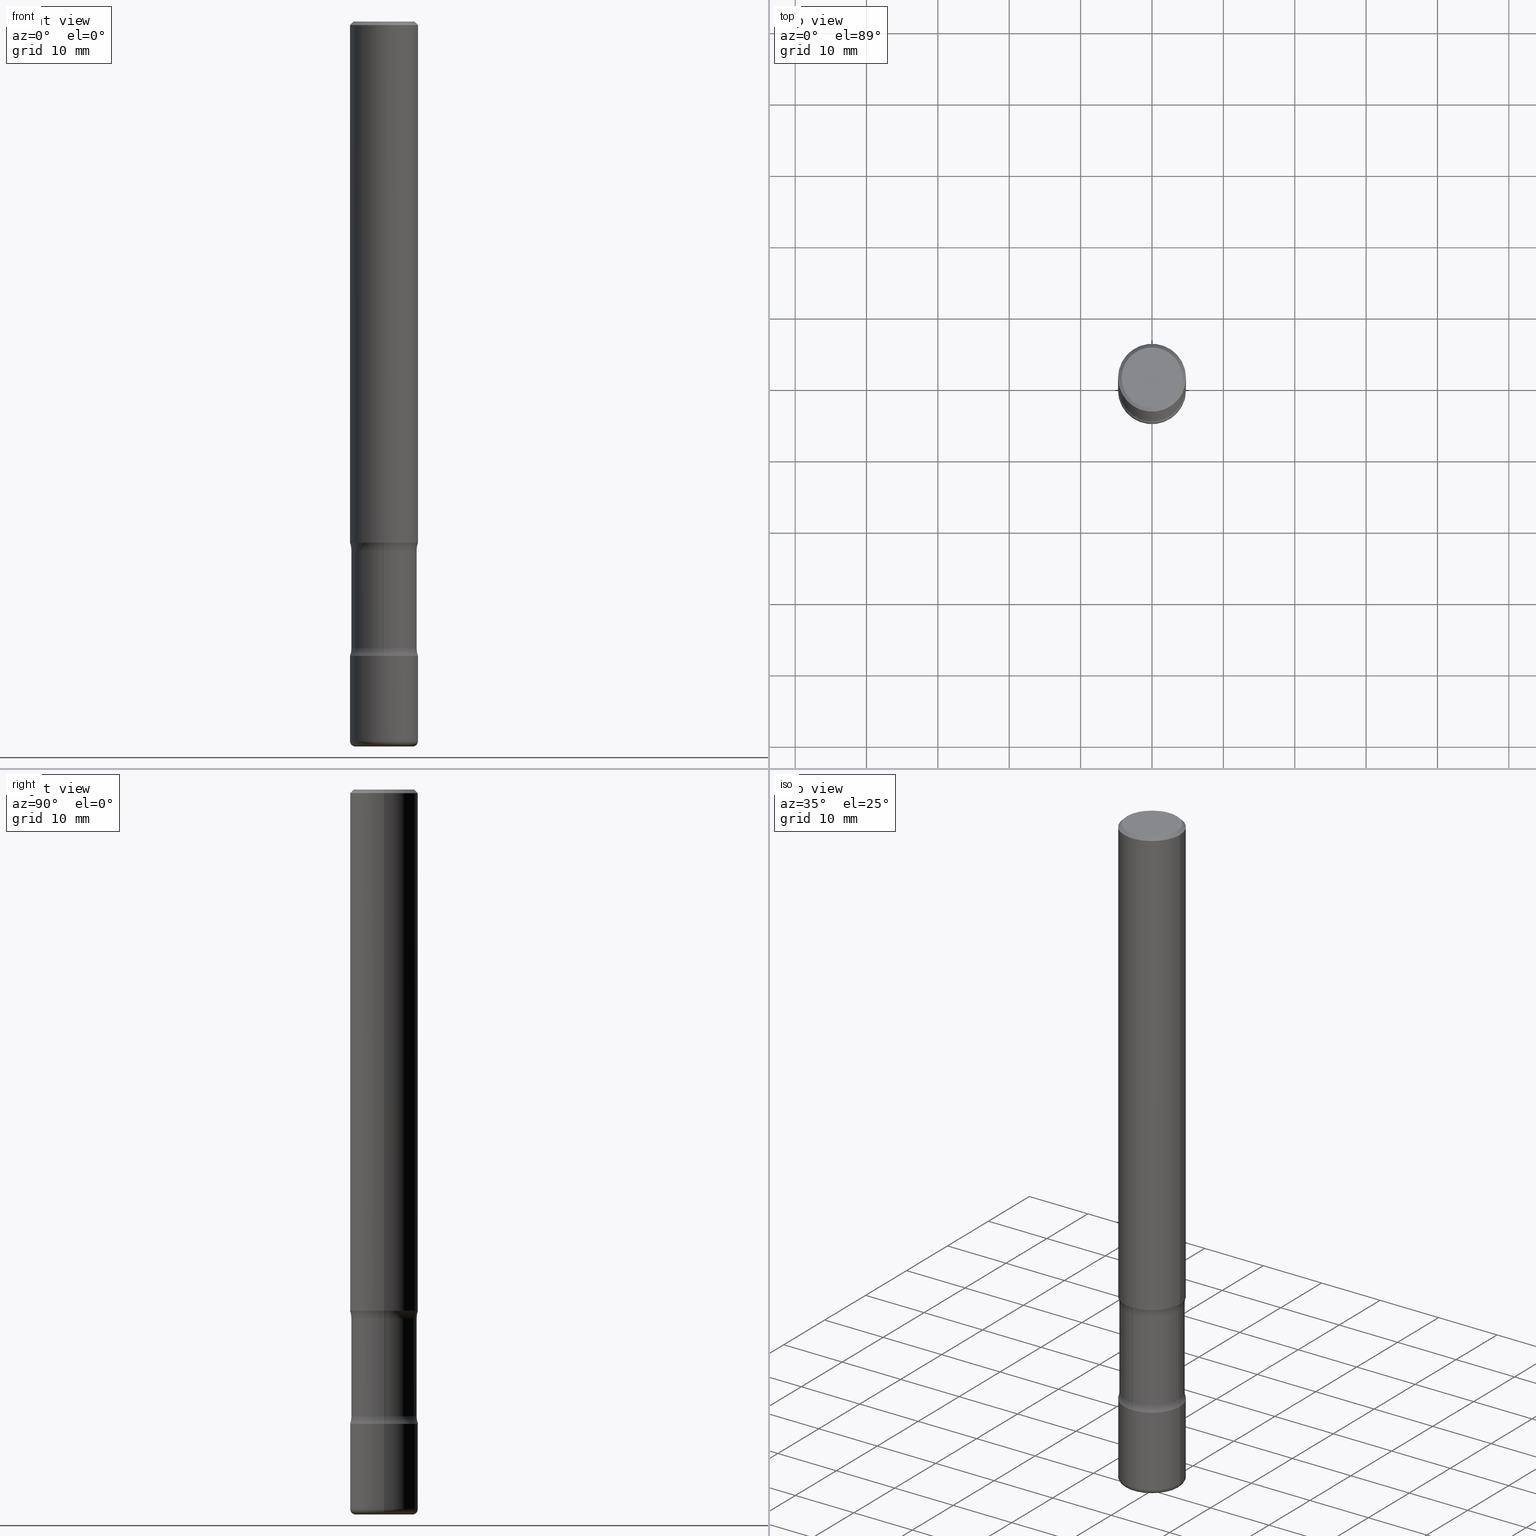
[diagram: canonical four-view strip — front | top / right | iso, engineering-drawing reading convention]
A machine part, canonical four-view strip (front | top / right | iso — engineering-drawing reading convention). The complete STEP part file that produces these views, byte-faithful:
ISO-10303-21;
HEADER;
FILE_DESCRIPTION (( 'STEP AP203' ),
    '1' );
FILE_NAME ('32762.STEP',
    '2023-03-11T07:00:31',
    ( '' ),
    ( '' ),
    'SwSTEP 2.0',
    'SolidWorks 2022',
    '' );
FILE_SCHEMA (( 'CONFIG_CONTROL_DESIGN' ));
ENDSEC;

DATA;
#1 = PERSON_AND_ORGANIZATION ( #17, #24 ) ;
#2 = DIRECTION ( 'NONE',  ( 1.000000000000000000, -6.982962677686265133E-15, 0.000000000000000000 ) ) ;
#3 = DIRECTION ( 'NONE',  ( -6.982962677686265922E-15, -1.000000000000000000, 3.494149645189090604E-15 ) ) ;
#4 = ADVANCED_BREP_SHAPE_REPRESENTATION ( '32762', ( #213, #483, #194, #472, #778 ), #739 ) ;
#5 = ORIENTED_EDGE ( 'NONE', *, *, #271, .F. ) ;
#6 = AXIS2_PLACEMENT_3D ( 'NONE', #566, #755, #639 ) ;
#7 = CIRCLE ( 'NONE', #630, 0.1249999999999999584 ) ;
#8 = CARTESIAN_POINT ( 'NONE',  ( 4.890937612370283668E-31, -6.982962677686305168E-17, -0.02000000000000004205 ) ) ;
#9 = DIRECTION ( 'NONE',  ( -2.445468806185136597E-29, 3.491481338843145583E-15, 1.000000000000000000 ) ) ;
#10 = EDGE_LOOP ( 'NONE', ( #644, #299 ) ) ;
#11 = EDGE_CURVE ( 'NONE', #582, #318, #142, .T. ) ;
#12 = CYLINDRICAL_SURFACE ( 'NONE', #425, 0.1799999999999999378 ) ;
#13 = CARTESIAN_POINT ( 'NONE',  ( 8.454928852112242500E-29, -1.207117036643762880E-14, -3.457353194726919821 ) ) ;
#14 = VERTEX_POINT ( 'NONE', #796 ) ;
#15 = ADVANCED_FACE ( 'NONE', ( #416 ), #352, .T. ) ;
#16 = DIRECTION ( 'NONE',  ( 2.438088387897960049E-29, -3.491481338843145188E-15, -1.000000000000000000 ) ) ;
#17 = PERSON ( 'UNSPECIFIED', 'UNSPECIFIED', 'UNSPECIFIED', ('UNSPECIFIED'), ('UNSPECIFIED'), ('UNSPECIFIED') ) ;
#18 = DIRECTION ( 'NONE',  ( 2.443605537822500206E-29, -3.494149645189090210E-15, -1.000000000000000000 ) ) ;
#19 = DIRECTION ( 'NONE',  ( 1.000000000000000000, -6.860497997771530774E-15, 4.840766202295886051E-29 ) ) ;
#20 = CIRCLE ( 'NONE', #206, 0.1875000000000000278 ) ;
#21 = EDGE_CURVE ( 'NONE', #783, #717, #381, .T. ) ;
#22 = AXIS2_PLACEMENT_3D ( 'NONE', #166, #666, #168 ) ;
#23 = DIRECTION ( 'NONE',  ( 6.982962677686265922E-15, 1.000000000000000000, -3.494149645189090604E-15 ) ) ;
#24 = ORGANIZATION ( 'UNSPECIFIED', 'UNSPECIFIED', '' ) ;
#25 = ORIENTED_EDGE ( 'NONE', *, *, #149, .F. ) ;
#26 = CYLINDRICAL_SURFACE ( 'NONE', #162, 0.1799999999999999378 ) ;
#27 = DIRECTION ( 'NONE',  ( 6.982962677686265922E-15, 1.000000000000000000, -2.913971193241880372E-15 ) ) ;
#28 = EDGE_LOOP ( 'NONE', ( #365, #249, #167, #495 ) ) ;
#29 = APPROVAL_STATUS ( 'not_yet_approved' ) ;
#30 = DIRECTION ( 'NONE',  ( 6.860497997771529985E-15, 1.000000000000000000, 0.000000000000000000 ) ) ;
#31 = DIRECTION ( 'NONE',  ( -1.000000000000000000, 6.982962677686266711E-15, 0.000000000000000000 ) ) ;
#32 = CLOSED_SHELL ( 'NONE', ( #322, #229, #766, #468, #343, #307, #590, #567 ) ) ;
#33 = FACE_OUTER_BOUND ( 'NONE', #557, .T. ) ;
#34 = FACE_OUTER_BOUND ( 'NONE', #374, .T. ) ;
#35 = CIRCLE ( 'NONE', #489, 0.1799999999999998823 ) ;
#36 = AXIS2_PLACEMENT_3D ( 'NONE', #97, #718, #140 ) ;
#37 = ORIENTED_EDGE ( 'NONE', *, *, #558, .F. ) ;
#38 = EDGE_CURVE ( 'NONE', #75, #403, #759, .T. ) ;
#39 = DIRECTION ( 'NONE',  ( 1.000000000000000000, -6.982962677686261189E-15, 0.000000000000000000 ) ) ;
#40 = PLANE ( 'NONE',  #694 ) ;
#41 = ORIENTED_EDGE ( 'NONE', *, *, #127, .F. ) ;
#42 = CARTESIAN_POINT ( 'NONE',  ( 9.708511160554992872E-29, -1.386118091520728738E-14, -3.970000000000000195 ) ) ;
#43 = ORIENTED_EDGE ( 'NONE', *, *, #779, .T. ) ;
#44 = EDGE_CURVE ( 'NONE', #415, #276, #59, .T. ) ;
#45 = PERSON_AND_ORGANIZATION ( #17, #24 ) ;
#46 = CARTESIAN_POINT ( 'NONE',  ( -1.286343374582076379E-15, -0.1875000000000122125, -3.499999999999999112 ) ) ;
#47 = ADVANCED_FACE ( 'NONE', ( #193 ), #570, .F. ) ;
#48 = ORIENTED_EDGE ( 'NONE', *, *, #310, .F. ) ;
#49 = AXIS2_PLACEMENT_3D ( 'NONE', #159, #767, #202 ) ;
#50 = AXIS2_PLACEMENT_3D ( 'NONE', #732, #674, #546 ) ;
#51 = DIRECTION ( 'NONE',  ( 1.000000000000000000, -6.982962677686266711E-15, 4.876176775795935793E-29 ) ) ;
#52 = CARTESIAN_POINT ( 'NONE',  ( -0.1875000000000000278, -1.170841517102895815E-14, -3.500000000000000000 ) ) ;
#53 = ORIENTED_EDGE ( 'NONE', *, *, #38, .T. ) ;
#54 = CARTESIAN_POINT ( 'NONE',  ( 0.1575000000000000289, -1.496099753694287407E-14, -3.970000000000000195 ) ) ;
#55 = ORIENTED_EDGE ( 'NONE', *, *, #215, .F. ) ;
#56 = LINE ( 'NONE', #679, #292 ) ;
#57 = CLOSED_SHELL ( 'NONE', ( #524, #614, #391, #79, #246, #47, #371, #526 ) ) ;
#58 = ORIENTED_EDGE ( 'NONE', *, *, #511, .F. ) ;
#59 = CIRCLE ( 'NONE', #617, 0.1875000000000000278 ) ;
#60 = VECTOR ( 'NONE', #685, 39.37007874015748143 ) ;
#61 = CIRCLE ( 'NONE', #619, 0.1250000000000000278 ) ;
#62 = AXIS2_PLACEMENT_3D ( 'NONE', #294, #545, #665 ) ;
#63 = CARTESIAN_POINT ( 'NONE',  ( 1.066029675449679514E-17, -1.394900823178876593E-14, -3.995154743233019445 ) ) ;
#64 = ORIENTED_EDGE ( 'NONE', *, *, #511, .T. ) ;
#65 = COORDINATED_UNIVERSAL_TIME_OFFSET ( 5, 0, .BEHIND. ) ;
#66 = CARTESIAN_POINT ( 'NONE',  ( 7.030722817782267716E-29, -1.003800884917404311E-14, -2.875000000000000000 ) ) ;
#67 = DIRECTION ( 'NONE',  ( 1.000000000000000000, -6.982962677686261189E-15, 0.000000000000000000 ) ) ;
#68 = LINE ( 'NONE', #63, #751 ) ;
#69 = CARTESIAN_POINT ( 'NONE',  ( 9.781875224740545266E-29, -1.396592535537258075E-14, -3.999999999999999556 ) ) ;
#70 = AXIS2_PLACEMENT_3D ( 'NONE', #487, #74, #505 ) ;
#71 = ORIENTED_EDGE ( 'NONE', *, *, #544, .T. ) ;
#72 = AXIS2_PLACEMENT_3D ( 'NONE', #188, #508, #245 ) ;
#73 = AXIS2_PLACEMENT_3D ( 'NONE', #123, #559, #452 ) ;
#74 = DIRECTION ( 'NONE',  ( -2.445468806185136597E-29, 3.491481338843145583E-15, 1.000000000000000000 ) ) ;
#75 = VERTEX_POINT ( 'NONE', #131 ) ;
#76 = CARTESIAN_POINT ( 'NONE',  ( 1.060483257565666710E-27, -1.514089034618338686E-13, -43.36523348339049733 ) ) ;
#77 = CARTESIAN_POINT ( 'NONE',  ( 8.559140821647976968E-29, -1.222018468595100934E-14, -3.500000000000000000 ) ) ;
#78 = ORIENTED_EDGE ( 'NONE', *, *, #379, .T. ) ;
#79 = ADVANCED_FACE ( 'NONE', ( #447 ), #539, .F. ) ;
#80 = DIRECTION ( 'NONE',  ( 1.000000000000000000, -6.982962677686263555E-15, 4.883557194083111219E-29 ) ) ;
#81 = FACE_OUTER_BOUND ( 'NONE', #678, .T. ) ;
#82 = ORIENTED_EDGE ( 'NONE', *, *, #296, .T. ) ;
#83 = DIRECTION ( 'NONE',  ( -2.445468806185136597E-29, 3.491481338843145583E-15, 1.000000000000000000 ) ) ;
#84 = AXIS2_PLACEMENT_3D ( 'NONE', #326, #18, #181 ) ;
#85 = CIRCLE ( 'NONE', #620, 0.1875000000000000278 ) ;
#86 = DIRECTION ( 'NONE',  ( 2.443605537822499646E-29, -3.494149645189090604E-15, -1.000000000000000000 ) ) ;
#87 = LOCAL_TIME ( 2, 0, 31.00000000000000000, #158 ) ;
#88 = VERTEX_POINT ( 'NONE', #380 ) ;
#89 = DIRECTION ( 'NONE',  ( 1.000000000000000000, -6.982962677686270655E-15, 0.000000000000000000 ) ) ;
#90 = DIRECTION ( 'NONE',  ( 1.000000000000000000, -6.982962677686269077E-15, 0.000000000000000000 ) ) ;
#91 = EDGE_LOOP ( 'NONE', ( #268, #525, #596, #293 ) ) ;
#92 = DIRECTION ( 'NONE',  ( 6.982962677686266711E-15, 1.000000000000000000, -3.494149645189089815E-15 ) ) ;
#93 = CARTESIAN_POINT ( 'NONE',  ( 7.135014249761037125E-29, -1.018690937394627965E-14, -2.917646805273079735 ) ) ;
#94 = EDGE_CURVE ( 'NONE', #445, #387, #99, .T. ) ;
#95 = EDGE_CURVE ( 'NONE', #203, #281, #423, .T. ) ;
#96 = ORIENTED_EDGE ( 'NONE', *, *, #757, .F. ) ;
#97 = CARTESIAN_POINT ( 'NONE',  ( 4.890937612370283668E-31, -6.982962677686305168E-17, -0.02000000000000004205 ) ) ;
#98 = DIRECTION ( 'NONE',  ( 1.000000000000000000, -6.982962677686265922E-15, 4.876176775795935793E-29 ) ) ;
#99 = CIRCLE ( 'NONE', #277, 0.1387500000000000122 ) ;
#100 = AXIS2_PLACEMENT_3D ( 'NONE', #76, #622, #683 ) ;
#101 = CIRCLE ( 'NONE', #62, 0.1874999999999998057 ) ;
#102 = APPROVAL_DATE_TIME ( #165, #179 ) ;
#103 = LENGTH_MEASURE_WITH_UNIT ( LENGTH_MEASURE( 0.02539999999999999897 ), #290 );
#104 = DIRECTION ( 'NONE',  ( 1.000000000000000000, -6.982962677686261189E-15, 0.000000000000000000 ) ) ;
#105 =( NAMED_UNIT ( * ) PLANE_ANGLE_UNIT ( ) SI_UNIT ( $, .RADIAN. ) );
#106 = CC_DESIGN_PERSON_AND_ORGANIZATION_ASSIGNMENT ( #611, #722, ( #628 ) ) ;
#107 = DIRECTION ( 'NONE',  ( 2.443605537822500206E-29, -3.494149645189090210E-15, -1.000000000000000000 ) ) ;
#108 = ORIENTED_EDGE ( 'NONE', *, *, #95, .F. ) ;
#109 = DIRECTION ( 'NONE',  ( 6.982962677686266711E-15, 1.000000000000000000, -3.494149645189089815E-15 ) ) ;
#110 = CIRCLE ( 'NONE', #49, 0.1250000000000000555 ) ;
#111 = ORIENTED_EDGE ( 'NONE', *, *, #11, .T. ) ;
#112 = AXIS2_PLACEMENT_3D ( 'NONE', #618, #198, #556 ) ;
#113 = DATE_AND_TIME ( #422, #451 ) ;
#114 = ADVANCED_FACE ( 'NONE', ( #389 ), #185, .T. ) ;
#115 = CARTESIAN_POINT ( 'NONE',  ( -0.1575000000000000289, -1.274207610638512978E-14, -3.970000000000000195 ) ) ;
#116 = ORIENTED_EDGE ( 'NONE', *, *, #253, .F. ) ;
#117 = DIRECTION ( 'NONE',  ( 1.000000000000000000, -6.982962677686261189E-15, 0.000000000000000000 ) ) ;
#118 = ORIENTED_EDGE ( 'NONE', *, *, #803, .F. ) ;
#119 = FACE_OUTER_BOUND ( 'NONE', #713, .T. ) ;
#120 = ORIENTED_EDGE ( 'NONE', *, *, #332, .T. ) ;
#121 = CONICAL_SURFACE ( 'NONE', #328, 1127.411546571484223, 1.535889741755010141 ) ;
#122 = VECTOR ( 'NONE', #467, 39.37007874015748143 ) ;
#123 = CARTESIAN_POINT ( 'NONE',  ( 9.769103694291262738E-29, -1.395032945633236056E-14, -3.995154743233019445 ) ) ;
#124 = CARTESIAN_POINT ( 'NONE',  ( 0.3049999999999999933, -1.420108777787308446E-14, -3.457353194726919821 ) ) ;
#125 = EDGE_CURVE ( 'NONE', #568, #745, #410, .T. ) ;
#126 = DIRECTION ( 'NONE',  ( 2.438088387897960049E-29, -3.491481338843145188E-15, -1.000000000000000000 ) ) ;
#127 = EDGE_CURVE ( 'NONE', #717, #408, #753, .T. ) ;
#128 = DIRECTION ( 'NONE',  ( -2.445468806185136597E-29, 3.491481338843145583E-15, 1.000000000000000000 ) ) ;
#129 = ORIENTED_EDGE ( 'NONE', *, *, #305, .T. ) ;
#130 = DIRECTION ( 'NONE',  ( -2.445468806185136597E-29, 3.491481338843145583E-15, 1.000000000000000000 ) ) ;
#131 = CARTESIAN_POINT ( 'NONE',  ( 0.1874999999999999722, -1.352949018801718277E-14, -3.500000000000000000 ) ) ;
#132 = CIRCLE ( 'NONE', #629, 0.1875000000000000278 ) ;
#133 = AXIS2_PLACEMENT_3D ( 'NONE', #770, #145, #39 ) ;
#134 = PLANE ( 'NONE',  #541 ) ;
#135 = CARTESIAN_POINT ( 'NONE',  ( -1.066029675430139337E-17, -1.394900823178876593E-14, -3.995154743233019445 ) ) ;
#136 = PRODUCT_DEFINITION ( 'UNKNOWN', '', #164, #359 ) ;
#137 = LINE ( 'NONE', #658, #790 ) ;
#138 = DIRECTION ( 'NONE',  ( 1.000000000000000000, -6.982962677686263555E-15, 0.000000000000000000 ) ) ;
#139 = ORIENTED_EDGE ( 'NONE', *, *, #440, .T. ) ;
#140 = DIRECTION ( 'NONE',  ( -1.000000000000000000, 6.982962677686266711E-15, 0.000000000000000000 ) ) ;
#141 = CARTESIAN_POINT ( 'NONE',  ( -0.1674999999999997879, 1.204561061900879272E-15, -8.301862719484101980E-30 ) ) ;
#142 = CIRCLE ( 'NONE', #243, 0.1799999999999999933 ) ;
#143 = PERSON_AND_ORGANIZATION ( #17, #24 ) ;
#144 = AXIS2_PLACEMENT_3D ( 'NONE', #543, #358, #227 ) ;
#145 = DIRECTION ( 'NONE',  ( -2.445468806185136597E-29, 3.491481338843145583E-15, 1.000000000000000000 ) ) ;
#146 = AXIS2_PLACEMENT_3D ( 'NONE', #13, #312, #631 ) ;
#147 = TOROIDAL_SURFACE ( 'NONE', #221, 0.3049999999999998823, 0.1249999999999999584 ) ;
#148 = CARTESIAN_POINT ( 'NONE',  ( -1.260616507090433870E-15, -0.1800000000000120393, -3.457353194726919376 ) ) ;
#149 = EDGE_CURVE ( 'NONE', #692, #445, #497, .T. ) ;
#150 = DIRECTION ( 'NONE',  ( 1.000000000000000000, -6.982962677686265922E-15, 4.876176775795935793E-29 ) ) ;
#151 = EDGE_CURVE ( 'NONE', #276, #415, #301, .T. ) ;
#152 = DIRECTION ( 'NONE',  ( 1.000000000000000000, -6.982962677686266711E-15, 4.876176775795935793E-29 ) ) ;
#153 = FACE_OUTER_BOUND ( 'NONE', #555, .T. ) ;
#154 = DIRECTION ( 'NONE',  ( -2.445468806185136597E-29, 3.491481338843145583E-15, 1.000000000000000000 ) ) ;
#155 = CALENDAR_DATE ( 2023, 11, 3 ) ;
#156 = ORIENTED_EDGE ( 'NONE', *, *, #44, .T. ) ;
#157 = CLOSED_SHELL ( 'NONE', ( #704, #190, #720, #675, #114, #192, #491, #15 ) ) ;
#158 = COORDINATED_UNIVERSAL_TIME_OFFSET ( 5, 0, .BEHIND. ) ;
#159 = CARTESIAN_POINT ( 'NONE',  ( -0.3049999999999999933, -9.904128817110467670E-15, -3.457353194726919821 ) ) ;
#160 = EDGE_CURVE ( 'NONE', #403, #75, #220, .T. ) ;
#161 = CIRCLE ( 'NONE', #564, 0.1799999999999998823 ) ;
#162 = AXIS2_PLACEMENT_3D ( 'NONE', #456, #773, #89 ) ;
#163 = ORIENTED_EDGE ( 'NONE', *, *, #681, .T. ) ;
#164 = PRODUCT_DEFINITION_FORMATION_WITH_SPECIFIED_SOURCE ( 'ANY', '', #628, .NOT_KNOWN. ) ;
#165 = DATE_AND_TIME ( #155, #426 ) ;
#166 = CARTESIAN_POINT ( 'NONE',  ( 7.135014249761037125E-29, -1.018690937394627965E-14, -2.917646805273079735 ) ) ;
#167 = ORIENTED_EDGE ( 'NONE', *, *, #160, .T. ) ;
#168 = DIRECTION ( 'NONE',  ( 1.000000000000000000, -6.982962677686273021E-15, 0.000000000000000000 ) ) ;
#169 = ORIENTED_EDGE ( 'NONE', *, *, #603, .T. ) ;
#170 = PERSON_AND_ORGANIZATION ( #17, #24 ) ;
#171 = DIRECTION ( 'NONE',  ( 0.7071067811865472397, -7.319954787623254468E-15, -0.7071067811865477948 ) ) ;
#172 = AXIS2_PLACEMENT_3D ( 'NONE', #399, #267, #98 ) ;
#173 = ORIENTED_EDGE ( 'NONE', *, *, #573, .T. ) ;
#174 = TOROIDAL_SURFACE ( 'NONE', #501, 0.3049999999999999933, 0.1250000000000000278 ) ;
#175 = CARTESIAN_POINT ( 'NONE',  ( -0.1799999999999998823, -8.806836834600976720E-15, -2.917646805273079735 ) ) ;
#176 = EDGE_LOOP ( 'NONE', ( #96, #163, #636, #680 ) ) ;
#177 = CARTESIAN_POINT ( 'NONE',  ( 0.1874999999999999722, -1.134731435124021811E-14, -2.875000000000000000 ) ) ;
#178 = EDGE_LOOP ( 'NONE', ( #41, #64, #71, #118 ) ) ;
#179 = APPROVAL ( #29, 'UNSPECIFIED' ) ;
#180 = CYLINDRICAL_SURFACE ( 'NONE', #73, 0.1799999999999999378 ) ;
#181 = DIRECTION ( 'NONE',  ( 6.982962677686265133E-15, 1.000000000000000000, -3.035386659626959132E-15 ) ) ;
#182 = CIRCLE ( 'NONE', #682, 0.1875000000000000278 ) ;
#183 = AXIS2_PLACEMENT_3D ( 'NONE', #756, #16, #442 ) ;
#184 = FACE_OUTER_BOUND ( 'NONE', #689, .T. ) ;
#185 = PLANE ( 'NONE',  #72 ) ;
#186 = VERTEX_POINT ( 'NONE', #763 ) ;
#187 = PLANE ( 'NONE',  #183 ) ;
#188 = CARTESIAN_POINT ( 'NONE',  ( 7.030722817782267716E-29, -1.003800884917404311E-14, -2.875000000000000000 ) ) ;
#189 = ORIENTED_EDGE ( 'NONE', *, *, #284, .F. ) ;
#190 = ADVANCED_FACE ( 'NONE', ( #240 ), #513, .F. ) ;
#191 = FACE_OUTER_BOUND ( 'NONE', #509, .T. ) ;
#192 = ADVANCED_FACE ( 'NONE', ( #81 ), #376, .T. ) ;
#193 = FACE_OUTER_BOUND ( 'NONE', #530, .T. ) ;
#194 = MANIFOLD_SOLID_BREP ( 'Body-Move/Copy2[3]', #157 ) ;
#195 = ORIENTED_EDGE ( 'NONE', *, *, #366, .T. ) ;
#196 = AXIS2_PLACEMENT_3D ( 'NONE', #457, #460, #31 ) ;
#197 = CIRCLE ( 'NONE', #133, 0.1875000000000000278 ) ;
#198 = DIRECTION ( 'NONE',  ( -2.445468806185136597E-29, 3.491481338843145583E-15, 1.000000000000000000 ) ) ;
#199 = CC_DESIGN_APPROVAL ( #179, ( #554 ) ) ;
#200 = CARTESIAN_POINT ( 'NONE',  ( 9.708511160554992872E-29, -1.386118091520728738E-14, -3.970000000000000195 ) ) ;
#201 = CARTESIAN_POINT ( 'NONE',  ( -1.260616507090447477E-15, -0.1800000000000100686, -2.917646805273079291 ) ) ;
#202 = DIRECTION ( 'NONE',  ( -1.000000000000000000, 7.105427357601008170E-15, 0.000000000000000000 ) ) ;
#203 = VERTEX_POINT ( 'NONE', #700 ) ;
#204 = DIRECTION ( 'NONE',  ( -2.445468806185136597E-29, 3.491481338843145583E-15, 1.000000000000000000 ) ) ;
#205 = FACE_OUTER_BOUND ( 'NONE', #210, .T. ) ;
#206 = AXIS2_PLACEMENT_3D ( 'NONE', #593, #212, #27 ) ;
#207 = CARTESIAN_POINT ( 'NONE',  ( -0.1575000000000000289, -1.268786691610376213E-14, -4.000000000000000000 ) ) ;
#208 = CIRCLE ( 'NONE', #672, 0.1875000000000000278 ) ;
#209 = CARTESIAN_POINT ( 'NONE',  ( 0.1874999999999999722, -1.517048641727346397E-14, -3.970000000000000195 ) ) ;
#210 = EDGE_LOOP ( 'NONE', ( #432, #195, #754, #637 ) ) ;
#211 = FACE_OUTER_BOUND ( 'NONE', #616, .T. ) ;
#212 = DIRECTION ( 'NONE',  ( 2.443605537822500206E-29, -3.494149645189090210E-15, -1.000000000000000000 ) ) ;
#213 = MANIFOLD_SOLID_BREP ( 'Body-Move/Copy2[1]', #32 ) ;
#214 = CARTESIAN_POINT ( 'NONE',  ( 0.000000000000000000, 0.000000000000000000, 0.000000000000000000 ) ) ;
#215 = EDGE_CURVE ( 'NONE', #281, #203, #761, .T. ) ;
#216 = PERSON_AND_ORGANIZATION_ROLE ( 'creator' ) ;
#217 = ORIENTED_EDGE ( 'NONE', *, *, #38, .F. ) ;
#218 = CALENDAR_DATE ( 2023, 11, 3 ) ;
#219 = CARTESIAN_POINT ( 'NONE',  ( 8.559140821647976968E-29, -1.222018468595100934E-14, -3.500000000000000000 ) ) ;
#220 = CIRCLE ( 'NONE', #434, 0.1875000000000000278 ) ;
#221 = AXIS2_PLACEMENT_3D ( 'NONE', #537, #788, #109 ) ;
#222 = EDGE_CURVE ( 'NONE', #318, #75, #609, .T. ) ;
#223 = VECTOR ( 'NONE', #515, 39.37007874015748143 ) ;
#224 = ORIENTED_EDGE ( 'NONE', *, *, #149, .T. ) ;
#225 = MECHANICAL_CONTEXT ( 'NONE', #656, 'mechanical' ) ;
#226 = FACE_BOUND ( 'NONE', #10, .T. ) ;
#227 = DIRECTION ( 'NONE',  ( 1.000000000000000000, -6.982962677686270655E-15, 0.000000000000000000 ) ) ;
#228 = APPLICATION_CONTEXT ( 'configuration controlled 3d designs of mechanical parts and assemblies' ) ;
#229 = ADVANCED_FACE ( 'NONE', ( #653 ), #522, .T. ) ;
#230 = EDGE_CURVE ( 'NONE', #427, #390, #551, .T. ) ;
#231 = DIRECTION ( 'NONE',  ( -6.982962677686266711E-15, -1.000000000000000000, 3.491481338843145583E-15 ) ) ;
#232 = AXIS2_PLACEMENT_3D ( 'NONE', #584, #270, #90 ) ;
#233 = ORIENTED_EDGE ( 'NONE', *, *, #779, .F. ) ;
#234 = AXIS2_PLACEMENT_3D ( 'NONE', #239, #367, #251 ) ;
#235 = LOCAL_TIME ( 2, 0, 31.00000000000000000, #394 ) ;
#236 = LINE ( 'NONE', #795, #250 ) ;
#237 = VERTEX_POINT ( 'NONE', #141 ) ;
#238 = ADVANCED_FACE ( 'NONE', ( #205 ), #671, .T. ) ;
#239 = CARTESIAN_POINT ( 'NONE',  ( 8.454849389669208679E-29, -1.207128416117877279E-14, -3.457353194726919821 ) ) ;
#240 = FACE_OUTER_BOUND ( 'NONE', #28, .T. ) ;
#241 = EDGE_CURVE ( 'NONE', #302, #362, #161, .T. ) ;
#242 = APPROVAL_STATUS ( 'not_yet_approved' ) ;
#243 = AXIS2_PLACEMENT_3D ( 'NONE', #308, #547, #806 ) ;
#244 = DIRECTION ( 'NONE',  ( -2.445468806185136877E-29, 3.491481338843145188E-15, 1.000000000000000000 ) ) ;
#245 = DIRECTION ( 'NONE',  ( 1.000000000000000000, -6.982962677686265922E-15, 4.876176775795935793E-29 ) ) ;
#246 = ADVANCED_FACE ( 'NONE', ( #781 ), #40, .F. ) ;
#247 = VECTOR ( 'NONE', #604, 39.37007874015748143 ) ;
#248 = TOROIDAL_SURFACE ( 'NONE', #608, 0.3049999999999999933, 0.1250000000000000278 ) ;
#249 = ORIENTED_EDGE ( 'NONE', *, *, #340, .T. ) ;
#250 = VECTOR ( 'NONE', #361, 39.37007874015748143 ) ;
#251 = DIRECTION ( 'NONE',  ( 1.000000000000000000, -6.982962677686264344E-15, 4.883557194083112340E-29 ) ) ;
#252 = DIRECTION ( 'NONE',  ( 1.000000000000000000, -6.982962677686261189E-15, 0.000000000000000000 ) ) ;
#253 = EDGE_CURVE ( 'NONE', #562, #203, #448, .T. ) ;
#254 = VERTEX_POINT ( 'NONE', #285 ) ;
#255 = DIRECTION ( 'NONE',  ( 6.982962677686265133E-15, 1.000000000000000000, -3.035386659626960315E-15 ) ) ;
#256 = CC_DESIGN_DATE_AND_TIME_ASSIGNMENT ( #782, #661, ( #554 ) ) ;
#257 = DIRECTION ( 'NONE',  ( 1.000000000000000000, -6.982962677686261189E-15, 0.000000000000000000 ) ) ;
#258 = ORIENTED_EDGE ( 'NONE', *, *, #332, .F. ) ;
#259 = FACE_OUTER_BOUND ( 'NONE', #686, .T. ) ;
#260 = ADVANCED_FACE ( 'NONE', ( #533 ), #393, .T. ) ;
#261 = DIRECTION ( 'NONE',  ( -2.445468806185136597E-29, 3.491481338843145583E-15, 1.000000000000000000 ) ) ;
#262 = AXIS2_PLACEMENT_3D ( 'NONE', #560, #512, #3 ) ;
#263 = ORIENTED_EDGE ( 'NONE', *, *, #253, .T. ) ;
#264 = VECTOR ( 'NONE', #439, 39.37007874015748143 ) ;
#265 = TOROIDAL_SURFACE ( 'NONE', #477, 0.3049999999999998823, 0.1249999999999999584 ) ;
#266 = CARTESIAN_POINT ( 'NONE',  ( -1.234889639598777160E-15, -0.1800000000000138989, -3.995154743233019001 ) ) ;
#267 = DIRECTION ( 'NONE',  ( -2.445468806185136597E-29, 3.491481338843145583E-15, 1.000000000000000000 ) ) ;
#268 = ORIENTED_EDGE ( 'NONE', *, *, #21, .T. ) ;
#269 = FACE_OUTER_BOUND ( 'NONE', #176, .T. ) ;
#270 = DIRECTION ( 'NONE',  ( -2.445468806185136597E-29, 3.491481338843145583E-15, 1.000000000000000000 ) ) ;
#271 = EDGE_CURVE ( 'NONE', #318, #582, #368, .T. ) ;
#272 = SHAPE_DEFINITION_REPRESENTATION ( #571, #4 ) ;
#273 = EDGE_LOOP ( 'NONE', ( #633, #297 ) ) ;
#274 = CYLINDRICAL_SURFACE ( 'NONE', #436, 0.1874999999999999167 ) ;
#275 = DIRECTION ( 'NONE',  ( 6.982962677686266711E-15, 1.000000000000000000, -3.035386659626961104E-15 ) ) ;
#276 = VERTEX_POINT ( 'NONE', #209 ) ;
#277 = AXIS2_PLACEMENT_3D ( 'NONE', #69, #9, #138 ) ;
#278 = CARTESIAN_POINT ( 'NONE',  ( -0.3049999999999998823, -8.019754029877974528E-15, -2.917646805273079735 ) ) ;
#279 = CONICAL_SURFACE ( 'NONE', #36, 0.1874999999999998057, 0.7853981633974479459 ) ;
#280 = CARTESIAN_POINT ( 'NONE',  ( 8.559140821647976968E-29, -1.222018468595100934E-14, -3.500000000000000000 ) ) ;
#281 = VERTEX_POINT ( 'NONE', #148 ) ;
#282 = ORIENTED_EDGE ( 'NONE', *, *, #151, .T. ) ;
#283 = FACE_OUTER_BOUND ( 'NONE', #441, .T. ) ;
#284 = EDGE_CURVE ( 'NONE', #395, #562, #20, .T. ) ;
#285 = CARTESIAN_POINT ( 'NONE',  ( 0.1674999999999997879, -1.252653207992877105E-15, 8.469775550109229576E-30 ) ) ;
#286 = ORIENTED_EDGE ( 'NONE', *, *, #363, .F. ) ;
#287 = CARTESIAN_POINT ( 'NONE',  ( -0.1874999999999998057, 1.239475875289310527E-15, -0.02000000000000004205 ) ) ;
#288 = ORIENTED_EDGE ( 'NONE', *, *, #573, .F. ) ;
#289 = ORIENTED_EDGE ( 'NONE', *, *, #673, .F. ) ;
#290 =( LENGTH_UNIT ( ) NAMED_UNIT ( * ) SI_UNIT ( $, .METRE. ) );
#291 = DIRECTION ( 'NONE',  ( 1.000000000000000000, -6.982962677686273810E-15, 0.000000000000000000 ) ) ;
#292 = VECTOR ( 'NONE', #171, 39.37007874015748143 ) ;
#293 = ORIENTED_EDGE ( 'NONE', *, *, #544, .F. ) ;
#294 = CARTESIAN_POINT ( 'NONE',  ( 4.890937612370283668E-31, -6.982962677686305168E-17, -0.02000000000000004205 ) ) ;
#295 = LINE ( 'NONE', #729, #553 ) ;
#296 = EDGE_CURVE ( 'NONE', #650, #186, #182, .T. ) ;
#297 = ORIENTED_EDGE ( 'NONE', *, *, #757, .T. ) ;
#298 = CARTESIAN_POINT ( 'NONE',  ( 2.129803616694381871E-15, 0.3049999999999897238, -2.917646805273081068 ) ) ;
#299 = ORIENTED_EDGE ( 'NONE', *, *, #558, .T. ) ;
#300 = EDGE_LOOP ( 'NONE', ( #25, #169, #651 ) ) ;
#301 = CIRCLE ( 'NONE', #724, 0.1875000000000000278 ) ;
#302 = VERTEX_POINT ( 'NONE', #709 ) ;
#303 = AXIS2_PLACEMENT_3D ( 'NONE', #278, #531, #521 ) ;
#304 = CIRCLE ( 'NONE', #437, 0.1674999999999997879 ) ;
#305 = EDGE_CURVE ( 'NONE', #237, #254, #396, .T. ) ;
#306 = DIRECTION ( 'NONE',  ( 0.9993908270190957621, -6.978169709227541488E-15, -0.03489949670250085817 ) ) ;
#307 = ADVANCED_FACE ( 'NONE', ( #34 ), #402, .T. ) ;
#308 = CARTESIAN_POINT ( 'NONE',  ( 8.454849389669208679E-29, -1.207128416117877279E-14, -3.457353194726919821 ) ) ;
#309 = DATE_TIME_ROLE ( 'creation_date' ) ;
#310 = EDGE_CURVE ( 'NONE', #787, #14, #35, .T. ) ;
#311 = CARTESIAN_POINT ( 'NONE',  ( 0.1575000000000000289, -1.506574197710817060E-14, -4.000000000000000000 ) ) ;
#312 = DIRECTION ( 'NONE',  ( 2.443605537822500206E-29, -3.494149645189090210E-15, -1.000000000000000000 ) ) ;
#313 = ORIENTED_EDGE ( 'NONE', *, *, #430, .F. ) ;
#314 = CARTESIAN_POINT ( 'NONE',  ( -0.1874999999999999722, -8.705741219623855258E-15, -2.875000000000000000 ) ) ;
#315 = DIRECTION ( 'NONE',  ( 6.982962677686266711E-15, 1.000000000000000000, -3.494149645189089815E-15 ) ) ;
#316 = AXIS2_PLACEMENT_3D ( 'NONE', #280, #333, #104 ) ;
#317 = AXIS2_PLACEMENT_3D ( 'NONE', #8, #130, #378 ) ;
#318 = VERTEX_POINT ( 'NONE', #349 ) ;
#319 = DIRECTION ( 'NONE',  ( 1.000000000000000000, -6.982962677686263555E-15, 0.000000000000000000 ) ) ;
#320 = CARTESIAN_POINT ( 'NONE',  ( 9.708511160554992872E-29, -1.386118091520728738E-14, -3.970000000000000195 ) ) ;
#321 = ORIENTED_EDGE ( 'NONE', *, *, #453, .T. ) ;
#322 = ADVANCED_FACE ( 'NONE', ( #649 ), #121, .F. ) ;
#323 = CARTESIAN_POINT ( 'NONE',  ( -0.1799999999999999933, -1.084011214660570641E-14, -3.457353194726919821 ) ) ;
#324 = DIRECTION ( 'NONE',  ( 2.438088387897960049E-29, -3.491481338843145188E-15, -1.000000000000000000 ) ) ;
#325 = CARTESIAN_POINT ( 'NONE',  ( 0.1799999999999999378, -1.129494213115757143E-14, -2.875000000000000000 ) ) ;
#326 = CARTESIAN_POINT ( 'NONE',  ( 8.454928852112242500E-29, -1.207117036643762880E-14, -3.457353194726919821 ) ) ;
#327 = CC_DESIGN_PERSON_AND_ORGANIZATION_ASSIGNMENT ( #591, #655, ( #164 ) ) ;
#328 = AXIS2_PLACEMENT_3D ( 'NONE', #589, #719, #516 ) ;
#329 = VECTOR ( 'NONE', #433, 39.37007874015748143 ) ;
#330 = CARTESIAN_POINT ( 'NONE',  ( -2.092451889320232214E-15, -0.3050000000000120393, -3.457353194726918488 ) ) ;
#331 = APPROVAL_PERSON_ORGANIZATION ( #1, #561, #498 ) ;
#332 = EDGE_CURVE ( 'NONE', #186, #650, #132, .T. ) ;
#333 = DIRECTION ( 'NONE',  ( -2.445468806185136597E-29, 3.491481338843145583E-15, 1.000000000000000000 ) ) ;
#334 = EDGE_LOOP ( 'NONE', ( #737, #58 ) ) ;
#335 = CARTESIAN_POINT ( 'NONE',  ( 7.135014249761037125E-29, -1.018690937394627965E-14, -2.917646805273079735 ) ) ;
#336 = DIRECTION ( 'NONE',  ( -1.000000000000000000, 6.982962677686265922E-15, -4.883557194083112340E-29 ) ) ;
#337 = ORIENTED_EDGE ( 'NONE', *, *, #600, .T. ) ;
#338 = CARTESIAN_POINT ( 'NONE',  ( 0.000000000000000000, 0.000000000000000000, 0.000000000000000000 ) ) ;
#339 = CARTESIAN_POINT ( 'NONE',  ( 0.000000000000000000, 0.000000000000000000, 0.000000000000000000 ) ) ;
#340 = EDGE_CURVE ( 'NONE', #582, #403, #110, .T. ) ;
#341 = ORIENTED_EDGE ( 'NONE', *, *, #222, .T. ) ;
#342 = ORIENTED_EDGE ( 'NONE', *, *, #453, .F. ) ;
#343 = ADVANCED_FACE ( 'NONE', ( #740 ), #344, .T. ) ;
#344 = TOROIDAL_SURFACE ( 'NONE', #789, 0.1575000000000000289, 0.02999999999999997113 ) ;
#345 = CIRCLE ( 'NONE', #317, 0.1874999999999998057 ) ;
#346 = TOROIDAL_SURFACE ( 'NONE', #714, 0.1575000000000000289, 0.02999999999999997113 ) ;
#347 = CARTESIAN_POINT ( 'NONE',  ( 7.136099330044652239E-29, -1.018535547722120939E-14, -2.917646805273079735 ) ) ;
#348 = ORIENTED_EDGE ( 'NONE', *, *, #151, .F. ) ;
#349 = CARTESIAN_POINT ( 'NONE',  ( 0.1799999999999999933, -1.332821744316230112E-14, -3.457353194726919821 ) ) ;
#350 = ORIENTED_EDGE ( 'NONE', *, *, #488, .F. ) ;
#351 = DIRECTION ( 'NONE',  ( 7.105427357601001859E-15, 1.000000000000000000, -3.491481338843145583E-15 ) ) ;
#352 = CYLINDRICAL_SURFACE ( 'NONE', #144, 0.1799999999999999378 ) ;
#353 =( NAMED_UNIT ( * ) SI_UNIT ( $, .STERADIAN. ) SOLID_ANGLE_UNIT ( ) );
#354 = AXIS2_PLACEMENT_3D ( 'NONE', #115, #351, #615 ) ;
#355 = CARTESIAN_POINT ( 'NONE',  ( -0.1874999999999999722, -1.252891328565709953E-14, -3.970000000000000195 ) ) ;
#356 = CIRCLE ( 'NONE', #22, 0.1799999999999998823 ) ;
#357 = AXIS2_PLACEMENT_3D ( 'NONE', #494, #612, #548 ) ;
#358 = DIRECTION ( 'NONE',  ( -2.445468806185136597E-29, 3.491481338843145583E-15, 1.000000000000000000 ) ) ;
#359 = DESIGN_CONTEXT ( 'detailed design', #228, 'design' ) ;
#360 = APPLICATION_PROTOCOL_DEFINITION ( 'international standard', 'config_control_design', 1994, #228 ) ;
#361 = DIRECTION ( 'NONE',  ( -2.445468806185136877E-29, 3.491481338843145188E-15, 1.000000000000000000 ) ) ;
#362 = VERTEX_POINT ( 'NONE', #175 ) ;
#363 = EDGE_CURVE ( 'NONE', #14, #186, #500, .T. ) ;
#364 = FACE_OUTER_BOUND ( 'NONE', #549, .T. ) ;
#365 = ORIENTED_EDGE ( 'NONE', *, *, #11, .F. ) ;
#366 = EDGE_CURVE ( 'NONE', #254, #88, #56, .T. ) ;
#367 = DIRECTION ( 'NONE',  ( -2.445468806185136597E-29, 3.491481338843145583E-15, 1.000000000000000000 ) ) ;
#368 = CIRCLE ( 'NONE', #232, 0.1799999999999999933 ) ;
#369 = ORIENTED_EDGE ( 'NONE', *, *, #406, .F. ) ;
#370 = CC_DESIGN_APPROVAL ( #768, ( #136 ) ) ;
#371 = ADVANCED_FACE ( 'NONE', ( #119 ), #248, .F. ) ;
#372 = CARTESIAN_POINT ( 'NONE',  ( 0.1874999999999999167, -1.309305502066174219E-15, 9.142831454617375408E-30 ) ) ;
#373 = DIRECTION ( 'NONE',  ( -6.982962677686266711E-15, -1.000000000000000000, 3.491481338843145583E-15 ) ) ;
#374 = EDGE_LOOP ( 'NONE', ( #342, #156, #466, #657 ) ) ;
#375 = DIRECTION ( 'NONE',  ( -1.000000000000000000, 6.982962677686265922E-15, -4.876176775795935793E-29 ) ) ;
#376 = PLANE ( 'NONE',  #594 ) ;
#377 = VERTEX_POINT ( 'NONE', #177 ) ;
#378 = DIRECTION ( 'NONE',  ( 1.000000000000000000, -6.982962677686266711E-15, 0.000000000000000000 ) ) ;
#379 = EDGE_CURVE ( 'NONE', #14, #203, #791, .T. ) ;
#380 = CARTESIAN_POINT ( 'NONE',  ( 0.1874999999999998057, -1.356173001359023888E-15, -0.02000000000000004205 ) ) ;
#381 = CIRCLE ( 'NONE', #70, 0.1875000000000000278 ) ;
#382 = EDGE_CURVE ( 'NONE', #745, #415, #710, .T. ) ;
#383 = AXIS2_PLACEMENT_3D ( 'NONE', #412, #774, #518 ) ;
#384 = TOROIDAL_SURFACE ( 'NONE', #234, 0.3049999999999999933, 0.1250000000000000278 ) ;
#385 = ORIENTED_EDGE ( 'NONE', *, *, #382, .F. ) ;
#386 = DIRECTION ( 'NONE',  ( -2.438088387897960049E-29, 3.491481338843145188E-15, 1.000000000000000000 ) ) ;
#387 = VERTEX_POINT ( 'NONE', #669 ) ;
#388 = CARTESIAN_POINT ( 'NONE',  ( 9.708511160554992872E-29, -1.386118091520728738E-14, -3.970000000000000195 ) ) ;
#389 = FACE_OUTER_BOUND ( 'NONE', #273, .T. ) ;
#390 = VERTEX_POINT ( 'NONE', #414 ) ;
#391 = ADVANCED_FACE ( 'NONE', ( #736 ), #147, .F. ) ;
#392 = DIRECTION ( 'NONE',  ( -2.445468806185136597E-29, 3.491481338843145583E-15, 1.000000000000000000 ) ) ;
#393 = CYLINDRICAL_SURFACE ( 'NONE', #775, 0.1874999999999999167 ) ;
#394 = COORDINATED_UNIVERSAL_TIME_OFFSET ( 5, 0, .BEHIND. ) ;
#395 = VERTEX_POINT ( 'NONE', #46 ) ;
#396 = CIRCLE ( 'NONE', #475, 0.1674999999999997879 ) ;
#397 = VECTOR ( 'NONE', #244, 39.37007874015748143 ) ;
#398 = DIRECTION ( 'NONE',  ( 1.000000000000000000, -6.982962677686267499E-15, 4.883557194083113462E-29 ) ) ;
#399 = CARTESIAN_POINT ( 'NONE',  ( 0.000000000000000000, 0.000000000000000000, 0.000000000000000000 ) ) ;
#400 = ORIENTED_EDGE ( 'NONE', *, *, #603, .F. ) ;
#401 = DIRECTION ( 'NONE',  ( 2.443605537822500206E-29, -3.494149645189090210E-15, -1.000000000000000000 ) ) ;
#402 = CYLINDRICAL_SURFACE ( 'NONE', #172, 0.1875000000000000278 ) ;
#403 = VERTEX_POINT ( 'NONE', #552 ) ;
#404 = PERSON_AND_ORGANIZATION_ROLE ( 'classification_officer' ) ;
#405 = DIRECTION ( 'NONE',  ( 1.000000000000000000, -6.982962677686265922E-15, 4.876176775795935793E-29 ) ) ;
#406 = EDGE_CURVE ( 'NONE', #745, #568, #776, .T. ) ;
#407 = CALENDAR_DATE ( 2023, 11, 3 ) ;
#408 = VERTEX_POINT ( 'NONE', #287 ) ;
#409 = AXIS2_PLACEMENT_3D ( 'NONE', #435, #261, #626 ) ;
#410 = CIRCLE ( 'NONE', #6, 0.1575000000000000289 ) ;
#411 = CALENDAR_DATE ( 2023, 11, 3 ) ;
#412 = CARTESIAN_POINT ( 'NONE',  ( 0.000000000000000000, 0.000000000000000000, 0.000000000000000000 ) ) ;
#413 = APPLICATION_PROTOCOL_DEFINITION ( 'international standard', 'config_control_design', 1994, #656 ) ;
#414 = CARTESIAN_POINT ( 'NONE',  ( 0.1875000000000000278, -1.352949018801718277E-14, -3.500000000000000000 ) ) ;
#415 = VERTEX_POINT ( 'NONE', #355 ) ;
#416 = FACE_OUTER_BOUND ( 'NONE', #450, .T. ) ;
#417 = UNCERTAINTY_MEASURE_WITH_UNIT (LENGTH_MEASURE( 1.000000000000000082E-05 ), #482, 'distance_accuracy_value', 'NONE');
#418 = EDGE_CURVE ( 'NONE', #390, #427, #738, .T. ) ;
#419 = CC_DESIGN_PERSON_AND_ORGANIZATION_ASSIGNMENT ( #786, #216, ( #164 ) ) ;
#420 = CARTESIAN_POINT ( 'NONE',  ( 1.256933281983625156E-15, 0.1799999999999859490, -3.995154743233019889 ) ) ;
#421 = ORIENTED_EDGE ( 'NONE', *, *, #296, .F. ) ;
#422 = CALENDAR_DATE ( 2023, 11, 3 ) ;
#423 = CIRCLE ( 'NONE', #146, 0.1799999999999999933 ) ;
#424 = CARTESIAN_POINT ( 'NONE',  ( 9.781875224740546387E-29, -1.396592535537258233E-14, -4.000000000000000000 ) ) ;
#425 = AXIS2_PLACEMENT_3D ( 'NONE', #438, #496, #255 ) ;
#426 = LOCAL_TIME ( 2, 0, 31.00000000000000000, #473 ) ;
#427 = VERTEX_POINT ( 'NONE', #52 ) ;
#428 = CARTESIAN_POINT ( 'NONE',  ( 8.454849389669208679E-29, -1.207128416117877279E-14, -3.457353194726919821 ) ) ;
#429 = ORIENTED_EDGE ( 'NONE', *, *, #382, .T. ) ;
#430 = EDGE_CURVE ( 'NONE', #276, #390, #295, .T. ) ;
#431 = DIRECTION ( 'NONE',  ( 1.000000000000000000, -6.982962677686263555E-15, 4.883557194083111219E-29 ) ) ;
#432 = ORIENTED_EDGE ( 'NONE', *, *, #793, .F. ) ;
#433 = DIRECTION ( 'NONE',  ( -2.445468806185136877E-29, 3.491481338843145188E-15, 1.000000000000000000 ) ) ;
#434 = AXIS2_PLACEMENT_3D ( 'NONE', #77, #128, #252 ) ;
#435 = CARTESIAN_POINT ( 'NONE',  ( 8.559140821647976968E-29, -1.222018468595100934E-14, -3.500000000000000000 ) ) ;
#436 = AXIS2_PLACEMENT_3D ( 'NONE', #338, #83, #150 ) ;
#437 = AXIS2_PLACEMENT_3D ( 'NONE', #702, #392, #51 ) ;
#438 = CARTESIAN_POINT ( 'NONE',  ( 9.769103694291262738E-29, -1.395032945633236056E-14, -3.995154743233019445 ) ) ;
#439 = DIRECTION ( 'NONE',  ( -2.445468806185136877E-29, 3.491481338843145188E-15, 1.000000000000000000 ) ) ;
#440 = EDGE_CURVE ( 'NONE', #14, #787, #492, .T. ) ;
#441 = EDGE_LOOP ( 'NONE', ( #730, #173, #640, #613 ) ) ;
#442 = DIRECTION ( 'NONE',  ( -1.000000000000000000, 6.982962677686265922E-15, -4.876176775795935793E-29 ) ) ;
#443 = EDGE_CURVE ( 'NONE', #362, #302, #356, .T. ) ;
#444 = CARTESIAN_POINT ( 'NONE',  ( -0.1874999999999999167, 1.332267629550187257E-15, -9.223003294227943787E-30 ) ) ;
#445 = VERTEX_POINT ( 'NONE', #798 ) ;
#446 = DIRECTION ( 'NONE',  ( 1.000000000000000000, -6.982962677686265922E-15, 4.876176775795935793E-29 ) ) ;
#447 = FACE_OUTER_BOUND ( 'NONE', #480, .T. ) ;
#448 = CIRCLE ( 'NONE', #800, 0.1250000000000000278 ) ;
#449 = CIRCLE ( 'NONE', #762, 0.1249999999999999584 ) ;
#450 = EDGE_LOOP ( 'NONE', ( #288, #111, #502, #529 ) ) ;
#451 = LOCAL_TIME ( 2, 0, 31.00000000000000000, #731 ) ;
#452 = DIRECTION ( 'NONE',  ( 6.982962677686265133E-15, 1.000000000000000000, -3.035386659626960315E-15 ) ) ;
#453 = EDGE_CURVE ( 'NONE', #415, #427, #236, .T. ) ;
#454 = CARTESIAN_POINT ( 'NONE',  ( 8.454849389669208679E-29, -1.207128416117877279E-14, -3.457353194726919821 ) ) ;
#455 = ORIENTED_EDGE ( 'NONE', *, *, #600, .F. ) ;
#456 = CARTESIAN_POINT ( 'NONE',  ( 7.030722817782267716E-29, -1.003800884917404311E-14, -2.875000000000000000 ) ) ;
#457 = CARTESIAN_POINT ( 'NONE',  ( 4.890937612370283668E-31, -6.982962677686305168E-17, -0.02000000000000004205 ) ) ;
#458 = EDGE_LOOP ( 'NONE', ( #385, #744, #610, #474 ) ) ;
#459 = FACE_OUTER_BOUND ( 'NONE', #91, .T. ) ;
#460 = DIRECTION ( 'NONE',  ( 2.445468806185136597E-29, -3.491481338843145583E-15, -1.000000000000000000 ) ) ;
#461 = APPROVAL_DATE_TIME ( #534, #561 ) ;
#462 = ORIENTED_EDGE ( 'NONE', *, *, #697, .F. ) ;
#463 = AXIS2_PLACEMENT_3D ( 'NONE', #747, #805, #319 ) ;
#464 = CARTESIAN_POINT ( 'NONE',  ( -1.286343374582091565E-15, -0.1875000000000100198, -2.874999999999999112 ) ) ;
#465 = DIRECTION ( 'NONE',  ( 6.982962677686265922E-15, 1.000000000000000000, -2.913971193241880372E-15 ) ) ;
#466 = ORIENTED_EDGE ( 'NONE', *, *, #430, .T. ) ;
#467 = DIRECTION ( 'NONE',  ( -2.445468806185136877E-29, 3.491481338843145188E-15, 1.000000000000000000 ) ) ;
#468 = ADVANCED_FACE ( 'NONE', ( #364, #226 ), #486, .F. ) ;
#469 = DIRECTION ( 'NONE',  ( 2.443605537822500206E-29, -3.494149645189090210E-15, -1.000000000000000000 ) ) ;
#470 = CARTESIAN_POINT ( 'NONE',  ( -0.1874999999999999722, -3.721651608425263776E-15, -2.875000000000000000 ) ) ;
#471 = CARTESIAN_POINT ( 'NONE',  ( 2.129803616694395676E-15, 0.3049999999999879474, -3.457353194726920709 ) ) ;
#472 = MANIFOLD_SOLID_BREP ( 'Body-Move/Copy2[4]', #57 ) ;
#473 = COORDINATED_UNIVERSAL_TIME_OFFSET ( 5, 0, .BEHIND. ) ;
#474 = ORIENTED_EDGE ( 'NONE', *, *, #44, .F. ) ;
#475 = AXIS2_PLACEMENT_3D ( 'NONE', #214, #154, #152 ) ;
#476 = DATE_AND_TIME ( #218, #752 ) ;
#477 = AXIS2_PLACEMENT_3D ( 'NONE', #335, #204, #588 ) ;
#478 = CC_DESIGN_APPROVAL ( #561, ( #164 ) ) ;
#479 = DIRECTION ( 'NONE',  ( -2.445468806185136597E-29, 3.491481338843145583E-15, 1.000000000000000000 ) ) ;
#480 = EDGE_LOOP ( 'NONE', ( #462, #792, #485, #120 ) ) ;
#481 = CC_DESIGN_DATE_AND_TIME_ASSIGNMENT ( #113, #309, ( #136 ) ) ;
#482 =( CONVERSION_BASED_UNIT ( 'INCH', #103 ) LENGTH_UNIT ( ) NAMED_UNIT ( #797 ) );
#483 = MANIFOLD_SOLID_BREP ( 'Body-Move/Copy2[2]', #749 ) ;
#484 = DIRECTION ( 'NONE',  ( -2.445468806185136877E-29, 3.491481338843145188E-15, 1.000000000000000000 ) ) ;
#485 = ORIENTED_EDGE ( 'NONE', *, *, #363, .T. ) ;
#486 = PLANE ( 'NONE',  #357 ) ;
#487 = CARTESIAN_POINT ( 'NONE',  ( 7.030722817782267716E-29, -1.003800884917404311E-14, -2.875000000000000000 ) ) ;
#488 = EDGE_CURVE ( 'NONE', #568, #276, #684, .T. ) ;
#489 = AXIS2_PLACEMENT_3D ( 'NONE', #347, #469, #275 ) ;
#490 = DIRECTION ( 'NONE',  ( 1.000000000000000000, -6.982962677686279332E-15, 0.000000000000000000 ) ) ;
#491 = ADVANCED_FACE ( 'NONE', ( #191 ), #384, .F. ) ;
#492 = CIRCLE ( 'NONE', #50, 0.1799999999999998823 ) ;
#493 = EDGE_LOOP ( 'NONE', ( #777, #580 ) ) ;
#494 = CARTESIAN_POINT ( 'NONE',  ( -7.161073312030321543E-28, -1.305247730850476631E-13, -4.000000000000000000 ) ) ;
#495 = ORIENTED_EDGE ( 'NONE', *, *, #222, .F. ) ;
#496 = DIRECTION ( 'NONE',  ( 2.443605537822500206E-29, -3.494149645189090210E-15, -1.000000000000000000 ) ) ;
#497 = LINE ( 'NONE', #135, #60 ) ;
#498 = APPROVAL_ROLE ( '' ) ;
#499 = FACE_OUTER_BOUND ( 'NONE', #493, .T. ) ;
#500 = CIRCLE ( 'NONE', #643, 0.1249999999999999584 ) ;
#501 = AXIS2_PLACEMENT_3D ( 'NONE', #708, #401, #92 ) ;
#502 = ORIENTED_EDGE ( 'NONE', *, *, #734, .T. ) ;
#503 = ADVANCED_FACE ( 'NONE', ( #184 ), #187, .F. ) ;
#504 = FACE_OUTER_BOUND ( 'NONE', #334, .T. ) ;
#505 = DIRECTION ( 'NONE',  ( 1.000000000000000000, -6.982962677686261189E-15, 0.000000000000000000 ) ) ;
#506 = EDGE_LOOP ( 'NONE', ( #258, #421 ) ) ;
#507 = CARTESIAN_POINT ( 'NONE',  ( -0.1799999999999999378, -8.759031924805863213E-15, -2.875000000000000000 ) ) ;
#508 = DIRECTION ( 'NONE',  ( -2.438088387897960049E-29, 3.491481338843145188E-15, 1.000000000000000000 ) ) ;
#509 = EDGE_LOOP ( 'NONE', ( #607, #5, #341, #53 ) ) ;
#510 = FACE_OUTER_BOUND ( 'NONE', #664, .T. ) ;
#511 = EDGE_CURVE ( 'NONE', #717, #783, #514, .T. ) ;
#512 = DIRECTION ( 'NONE',  ( -2.443605537822499646E-29, 3.494149645189090604E-15, 1.000000000000000000 ) ) ;
#513 = TOROIDAL_SURFACE ( 'NONE', #660, 0.3049999999999999933, 0.1250000000000000278 ) ;
#514 = CIRCLE ( 'NONE', #112, 0.1875000000000000278 ) ;
#515 = DIRECTION ( 'NONE',  ( 2.443605537822499926E-29, -3.494149645189090604E-15, -1.000000000000000000 ) ) ;
#516 = DIRECTION ( 'NONE',  ( -1.000000000000000000, 6.982962677686265922E-15, 0.000000000000000000 ) ) ;
#517 = CARTESIAN_POINT ( 'NONE',  ( 7.030722817782267716E-29, -1.003800884917404311E-14, -2.875000000000000000 ) ) ;
#518 = DIRECTION ( 'NONE',  ( 1.000000000000000000, -6.982962677686265922E-15, 4.876176775795935793E-29 ) ) ;
#519 = VERTEX_POINT ( 'NONE', #314 ) ;
#520 = PRODUCT_RELATED_PRODUCT_CATEGORY ( 'detail', '', ( #628 ) ) ;
#521 = DIRECTION ( 'NONE',  ( -1.000000000000000000, 7.105427357600998703E-15, 0.000000000000000000 ) ) ;
#522 = CYLINDRICAL_SURFACE ( 'NONE', #383, 0.1875000000000000278 ) ;
#523 = AXIS2_PLACEMENT_3D ( 'NONE', #124, #373, #624 ) ;
#524 = ADVANCED_FACE ( 'NONE', ( #569 ), #12, .T. ) ;
#525 = ORIENTED_EDGE ( 'NONE', *, *, #127, .T. ) ;
#526 = ADVANCED_FACE ( 'NONE', ( #510 ), #180, .T. ) ;
#527 = DIRECTION ( 'NONE',  ( 1.000000000000000000, -6.860497997771530774E-15, 4.840766202295886051E-29 ) ) ;
#528 = DIRECTION ( 'NONE',  ( -2.445468806185136597E-29, 3.491481338843145583E-15, 1.000000000000000000 ) ) ;
#529 = ORIENTED_EDGE ( 'NONE', *, *, #443, .F. ) ;
#530 = EDGE_LOOP ( 'NONE', ( #337, #538 ) ) ;
#531 = DIRECTION ( 'NONE',  ( 7.105427357601001859E-15, 1.000000000000000000, -3.491481338843145583E-15 ) ) ;
#532 = ADVANCED_FACE ( 'NONE', ( #504 ), #563, .F. ) ;
#533 = FACE_OUTER_BOUND ( 'NONE', #178, .T. ) ;
#534 = DATE_AND_TIME ( #411, #87 ) ;
#535 = ORIENTED_EDGE ( 'NONE', *, *, #160, .F. ) ;
#536 = DIRECTION ( 'NONE',  ( 1.000000000000000000, 0.000000000000000000, 0.000000000000000000 ) ) ;
#537 = CARTESIAN_POINT ( 'NONE',  ( 7.135014249761037125E-29, -1.018690937394627965E-14, -2.917646805273079735 ) ) ;
#538 = ORIENTED_EDGE ( 'NONE', *, *, #284, .T. ) ;
#539 = TOROIDAL_SURFACE ( 'NONE', #579, 0.3049999999999998823, 0.1249999999999999584 ) ;
#540 = APPROVAL_DATE_TIME ( #476, #768 ) ;
#541 = AXIS2_PLACEMENT_3D ( 'NONE', #750, #126, #375 ) ;
#542 = DIRECTION ( 'NONE',  ( 6.982962677686266711E-15, 1.000000000000000000, -3.494149645189089815E-15 ) ) ;
#543 = CARTESIAN_POINT ( 'NONE',  ( 7.030722817782267716E-29, -1.003800884917404311E-14, -2.875000000000000000 ) ) ;
#544 = EDGE_CURVE ( 'NONE', #783, #88, #699, .T. ) ;
#545 = DIRECTION ( 'NONE',  ( -2.445468806185136597E-29, 3.491481338843145583E-15, 1.000000000000000000 ) ) ;
#546 = DIRECTION ( 'NONE',  ( 6.982962677686266711E-15, 1.000000000000000000, -3.035386659626961104E-15 ) ) ;
#547 = DIRECTION ( 'NONE',  ( -2.445468806185136597E-29, 3.491481338843145583E-15, 1.000000000000000000 ) ) ;
#548 = DIRECTION ( 'NONE',  ( 1.000000000000000000, -6.982962677686265922E-15, 4.876176775795935793E-29 ) ) ;
#549 = EDGE_LOOP ( 'NONE', ( #741, #369 ) ) ;
#550 = EDGE_CURVE ( 'NONE', #377, #302, #7, .T. ) ;
#551 = CIRCLE ( 'NONE', #316, 0.1875000000000000278 ) ;
#552 = CARTESIAN_POINT ( 'NONE',  ( -0.1874999999999999722, -1.088791705640082149E-14, -3.500000000000000000 ) ) ;
#553 = VECTOR ( 'NONE', #484, 39.37007874015748143 ) ;
#554 = SECURITY_CLASSIFICATION ( '', '', #595 ) ;
#555 = EDGE_LOOP ( 'NONE', ( #804, #289, #670, #586 ) ) ;
#556 = DIRECTION ( 'NONE',  ( 1.000000000000000000, -6.982962677686261189E-15, 0.000000000000000000 ) ) ;
#557 = EDGE_LOOP ( 'NONE', ( #701, #429, #348, #350 ) ) ;
#558 = EDGE_CURVE ( 'NONE', #387, #445, #645, .T. ) ;
#559 = DIRECTION ( 'NONE',  ( 2.443605537822500206E-29, -3.494149645189090210E-15, -1.000000000000000000 ) ) ;
#560 = CARTESIAN_POINT ( 'NONE',  ( 8.559140821647976968E-29, -1.222018468595100934E-14, -3.500000000000000000 ) ) ;
#561 = APPROVAL ( #242, 'UNSPECIFIED' ) ;
#562 = VERTEX_POINT ( 'NONE', #693 ) ;
#563 = PLANE ( 'NONE',  #712 ) ;
#564 = AXIS2_PLACEMENT_3D ( 'NONE', #93, #528, #642 ) ;
#565 = CONICAL_SURFACE ( 'NONE', #100, 1127.411546571484223, 1.535889741755010141 ) ;
#566 = CARTESIAN_POINT ( 'NONE',  ( 9.781875224740546387E-29, -1.396592535537258233E-14, -4.000000000000000000 ) ) ;
#567 = ADVANCED_FACE ( 'NONE', ( #259 ), #565, .F. ) ;
#568 = VERTEX_POINT ( 'NONE', #311 ) ;
#569 = FACE_OUTER_BOUND ( 'NONE', #721, .T. ) ;
#570 = PLANE ( 'NONE',  #262 ) ;
#571 = PRODUCT_DEFINITION_SHAPE ( 'NONE', 'NONE',  #136 ) ;
#572 = EDGE_LOOP ( 'NONE', ( #48, #705, #82, #286 ) ) ;
#573 = EDGE_CURVE ( 'NONE', #582, #362, #687, .T. ) ;
#574 = DIRECTION ( 'NONE',  ( 2.443605537822500206E-29, -3.494149645189090210E-15, -1.000000000000000000 ) ) ;
#575 = DIRECTION ( 'NONE',  ( -1.000000000000000000, 6.982962677686265922E-15, -4.876176775795935793E-29 ) ) ;
#576 = ORIENTED_EDGE ( 'NONE', *, *, #305, .F. ) ;
#577 = CARTESIAN_POINT ( 'NONE',  ( 7.135014249761037125E-29, -1.018690937394627965E-14, -2.917646805273079735 ) ) ;
#578 = CARTESIAN_POINT ( 'NONE',  ( 7.135014249761037125E-29, -1.018690937394627965E-14, -2.917646805273079735 ) ) ;
#579 = AXIS2_PLACEMENT_3D ( 'NONE', #578, #696, #315 ) ;
#580 = ORIENTED_EDGE ( 'NONE', *, *, #230, .T. ) ;
#581 = CC_DESIGN_SECURITY_CLASSIFICATION ( #554, ( #164 ) ) ;
#582 = VERTEX_POINT ( 'NONE', #323 ) ;
#583 = DIRECTION ( 'NONE',  ( -2.445468806185136597E-29, 3.491481338843145583E-15, 1.000000000000000000 ) ) ;
#584 = CARTESIAN_POINT ( 'NONE',  ( 8.454849389669208679E-29, -1.207128416117877279E-14, -3.457353194726919821 ) ) ;
#585 = PERSON_AND_ORGANIZATION ( #17, #24 ) ;
#586 = ORIENTED_EDGE ( 'NONE', *, *, #241, .T. ) ;
#587 = CC_DESIGN_PERSON_AND_ORGANIZATION_ASSIGNMENT ( #143, #404, ( #554 ) ) ;
#588 = DIRECTION ( 'NONE',  ( 1.000000000000000000, -6.982962677686267499E-15, 4.883557194083113462E-29 ) ) ;
#589 = CARTESIAN_POINT ( 'NONE',  ( 1.060483257565666710E-27, -1.514089034618338686E-13, -43.36523348339049733 ) ) ;
#590 = ADVANCED_FACE ( 'NONE', ( #499 ), #134, .F. ) ;
#591 = PERSON_AND_ORGANIZATION ( #17, #24 ) ;
#592 = DIRECTION ( 'NONE',  ( -2.445468806185136597E-29, 3.491481338843145583E-15, 1.000000000000000000 ) ) ;
#593 = CARTESIAN_POINT ( 'NONE',  ( 8.559140821647976968E-29, -1.222018468595100934E-14, -3.500000000000000000 ) ) ;
#594 = AXIS2_PLACEMENT_3D ( 'NONE', #691, #324, #575 ) ;
#595 = SECURITY_CLASSIFICATION_LEVEL ( 'unclassified' ) ;
#596 = ORIENTED_EDGE ( 'NONE', *, *, #605, .F. ) ;
#597 = TOROIDAL_SURFACE ( 'NONE', #662, 0.3049999999999998823, 0.1249999999999999584 ) ;
#598 = LINE ( 'NONE', #266, #223 ) ;
#599 = DIRECTION ( 'NONE',  ( 2.443605537822500206E-29, -3.494149645189090210E-15, -1.000000000000000000 ) ) ;
#600 = EDGE_CURVE ( 'NONE', #562, #395, #208, .T. ) ;
#601 = EDGE_LOOP ( 'NONE', ( #189, #621, #726, #116 ) ) ;
#602 = APPROVAL_STATUS ( 'not_yet_approved' ) ;
#603 = EDGE_CURVE ( 'NONE', #692, #387, #68, .T. ) ;
#604 = DIRECTION ( 'NONE',  ( 2.443605537822499926E-29, -3.494149645189090604E-15, -1.000000000000000000 ) ) ;
#605 = EDGE_CURVE ( 'NONE', #88, #408, #345, .T. ) ;
#606 = DIRECTION ( 'NONE',  ( -1.000000000000000000, 6.982962677686265922E-15, -4.883557194083112340E-29 ) ) ;
#607 = ORIENTED_EDGE ( 'NONE', *, *, #340, .F. ) ;
#608 = AXIS2_PLACEMENT_3D ( 'NONE', #428, #107, #542 ) ;
#609 = CIRCLE ( 'NONE', #523, 0.1250000000000000555 ) ;
#610 = ORIENTED_EDGE ( 'NONE', *, *, #488, .T. ) ;
#611 = PERSON_AND_ORGANIZATION ( #17, #24 ) ;
#612 = DIRECTION ( 'NONE',  ( -2.438088387897960049E-29, 3.491481338843145188E-15, 1.000000000000000000 ) ) ;
#613 = ORIENTED_EDGE ( 'NONE', *, *, #734, .F. ) ;
#614 = ADVANCED_FACE ( 'NONE', ( #627 ), #174, .F. ) ;
#615 = DIRECTION ( 'NONE',  ( -1.000000000000000000, 7.105427357601001859E-15, 0.000000000000000000 ) ) ;
#616 = EDGE_LOOP ( 'NONE', ( #646, #576, #698, #654 ) ) ;
#617 = AXIS2_PLACEMENT_3D ( 'NONE', #320, #758, #67 ) ;
#618 = CARTESIAN_POINT ( 'NONE',  ( 7.030722817782267716E-29, -1.003800884917404311E-14, -2.875000000000000000 ) ) ;
#619 = AXIS2_PLACEMENT_3D ( 'NONE', #330, #527, #30 ) ;
#620 = AXIS2_PLACEMENT_3D ( 'NONE', #517, #592, #780 ) ;
#621 = ORIENTED_EDGE ( 'NONE', *, *, #707, .T. ) ;
#622 = DIRECTION ( 'NONE',  ( 2.445468806185136597E-29, -3.491481338843145583E-15, -1.000000000000000000 ) ) ;
#623 = CC_DESIGN_PERSON_AND_ORGANIZATION_ASSIGNMENT ( #170, #728, ( #136 ) ) ;
#624 = DIRECTION ( 'NONE',  ( 1.000000000000000000, -6.982962677686259611E-15, 0.000000000000000000 ) ) ;
#625 = CARTESIAN_POINT ( 'NONE',  ( 8.559140821647976968E-29, -1.222018468595100934E-14, -3.500000000000000000 ) ) ;
#626 = DIRECTION ( 'NONE',  ( 1.000000000000000000, -6.982962677686261189E-15, 0.000000000000000000 ) ) ;
#627 = FACE_OUTER_BOUND ( 'NONE', #601, .T. ) ;
#628 = PRODUCT ( '32762', '32762', '', ( #225 ) ) ;
#629 = AXIS2_PLACEMENT_3D ( 'NONE', #659, #663, #723 ) ;
#630 = AXIS2_PLACEMENT_3D ( 'NONE', #760, #690, #2 ) ;
#631 = DIRECTION ( 'NONE',  ( 6.982962677686265133E-15, 1.000000000000000000, -3.035386659626959132E-15 ) ) ;
#632 = APPROVAL_PERSON_ORGANIZATION ( #585, #179, #725 ) ;
#633 = ORIENTED_EDGE ( 'NONE', *, *, #673, .T. ) ;
#634 = DIRECTION ( 'NONE',  ( 6.982962677686265922E-15, 1.000000000000000000, -2.913971193241880372E-15 ) ) ;
#635 = DIRECTION ( 'NONE',  ( -2.445468806185136597E-29, 3.491481338843145583E-15, 1.000000000000000000 ) ) ;
#636 = ORIENTED_EDGE ( 'NONE', *, *, #443, .T. ) ;
#637 = ORIENTED_EDGE ( 'NONE', *, *, #746, .F. ) ;
#638 = DIRECTION ( 'NONE',  ( -2.445468806185136597E-29, 3.491481338843145583E-15, 1.000000000000000000 ) ) ;
#639 = DIRECTION ( 'NONE',  ( 1.000000000000000000, -6.982962677686273810E-15, 0.000000000000000000 ) ) ;
#640 = ORIENTED_EDGE ( 'NONE', *, *, #241, .F. ) ;
#641 = LINE ( 'NONE', #325, #122 ) ;
#642 = DIRECTION ( 'NONE',  ( 1.000000000000000000, -6.982962677686273021E-15, 0.000000000000000000 ) ) ;
#643 = AXIS2_PLACEMENT_3D ( 'NONE', #298, #606, #743 ) ;
#644 = ORIENTED_EDGE ( 'NONE', *, *, #94, .T. ) ;
#645 = CIRCLE ( 'NONE', #463, 0.1387500000000000122 ) ;
#646 = ORIENTED_EDGE ( 'NONE', *, *, #366, .F. ) ;
#647 = CARTESIAN_POINT ( 'NONE',  ( 9.762582255022034530E-29, -1.395966852854316576E-14, -3.995154743233019445 ) ) ;
#648 = ADVANCED_FACE ( 'NONE', ( #211 ), #279, .T. ) ;
#649 = FACE_OUTER_BOUND ( 'NONE', #300, .T. ) ;
#650 = VERTEX_POINT ( 'NONE', #464 ) ;
#651 = ORIENTED_EDGE ( 'NONE', *, *, #94, .F. ) ;
#652 = DIRECTION ( 'NONE',  ( -0.7071067811865472397, 2.468850131082253905E-15, -0.7071067811865477948 ) ) ;
#653 = FACE_OUTER_BOUND ( 'NONE', #667, .T. ) ;
#654 = ORIENTED_EDGE ( 'NONE', *, *, #803, .T. ) ;
#655 = PERSON_AND_ORGANIZATION_ROLE ( 'design_supplier' ) ;
#656 = APPLICATION_CONTEXT ( 'configuration controlled 3d designs of mechanical parts and assemblies' ) ;
#657 = ORIENTED_EDGE ( 'NONE', *, *, #230, .F. ) ;
#658 = CARTESIAN_POINT ( 'NONE',  ( -0.1874999999999998057, 1.239475875289310527E-15, -0.02000000000000004205 ) ) ;
#659 = CARTESIAN_POINT ( 'NONE',  ( 7.031887360508915530E-29, -1.003634115770782885E-14, -2.875000000000000000 ) ) ;
#660 = AXIS2_PLACEMENT_3D ( 'NONE', #454, #635, #748 ) ;
#661 = DATE_TIME_ROLE ( 'classification_date' ) ;
#662 = AXIS2_PLACEMENT_3D ( 'NONE', #577, #583, #398 ) ;
#663 = DIRECTION ( 'NONE',  ( 2.443605537822500206E-29, -3.494149645189090210E-15, -1.000000000000000000 ) ) ;
#664 = EDGE_LOOP ( 'NONE', ( #233, #706, #78, #55 ) ) ;
#665 = DIRECTION ( 'NONE',  ( 1.000000000000000000, -6.982962677686266711E-15, 0.000000000000000000 ) ) ;
#666 = DIRECTION ( 'NONE',  ( -2.445468806185136597E-29, 3.491481338843145583E-15, 1.000000000000000000 ) ) ;
#667 = EDGE_LOOP ( 'NONE', ( #282, #321, #799, #313 ) ) ;
#668 = CARTESIAN_POINT ( 'NONE',  ( 0.000000000000000000, 0.000000000000000000, 0.000000000000000000 ) ) ;
#669 = CARTESIAN_POINT ( 'NONE',  ( 0.1387500000000000955, -1.491781945256337905E-14, -3.999999999999999556 ) ) ;
#670 = ORIENTED_EDGE ( 'NONE', *, *, #550, .T. ) ;
#671 = CONICAL_SURFACE ( 'NONE', #196, 0.1874999999999998057, 0.7853981633974479459 ) ;
#672 = AXIS2_PLACEMENT_3D ( 'NONE', #625, #574, #634 ) ;
#673 = EDGE_CURVE ( 'NONE', #377, #519, #197, .T. ) ;
#674 = DIRECTION ( 'NONE',  ( 2.443605537822500206E-29, -3.494149645189090210E-15, -1.000000000000000000 ) ) ;
#675 = ADVANCED_FACE ( 'NONE', ( #153 ), #597, .F. ) ;
#676 = ORIENTED_EDGE ( 'NONE', *, *, #707, .F. ) ;
#677 = DIRECTION ( 'NONE',  ( -2.445468806185136597E-29, 3.491481338843145583E-15, 1.000000000000000000 ) ) ;
#678 = EDGE_LOOP ( 'NONE', ( #217, #535 ) ) ;
#679 = CARTESIAN_POINT ( 'NONE',  ( 0.1874999999999998057, -1.356173001359023888E-15, -0.02000000000000004205 ) ) ;
#680 = ORIENTED_EDGE ( 'NONE', *, *, #550, .F. ) ;
#681 = EDGE_CURVE ( 'NONE', #519, #362, #801, .T. ) ;
#682 = AXIS2_PLACEMENT_3D ( 'NONE', #771, #599, #465 ) ;
#683 = DIRECTION ( 'NONE',  ( -1.000000000000000000, 6.982962677686265922E-15, 0.000000000000000000 ) ) ;
#684 = CIRCLE ( 'NONE', #711, 0.02999999999999995379 ) ;
#685 = DIRECTION ( 'NONE',  ( -0.9993908270190957621, 6.856857904024558048E-15, -0.03489949670250085817 ) ) ;
#686 = EDGE_LOOP ( 'NONE', ( #400, #224, #37 ) ) ;
#687 = LINE ( 'NONE', #507, #397 ) ;
#688 = DIRECTION ( 'NONE',  ( -2.445468806185136597E-29, 3.491481338843145583E-15, 1.000000000000000000 ) ) ;
#689 = EDGE_LOOP ( 'NONE', ( #129, #772 ) ) ;
#690 = DIRECTION ( 'NONE',  ( -6.982962677686266711E-15, -1.000000000000000000, 3.491481338843145583E-15 ) ) ;
#691 = CARTESIAN_POINT ( 'NONE',  ( 8.559140821647976968E-29, -1.222018468595100934E-14, -3.500000000000000000 ) ) ;
#692 = VERTEX_POINT ( 'NONE', #647 ) ;
#693 = CARTESIAN_POINT ( 'NONE',  ( 1.309305502066260402E-15, 0.1874999999999877875, -3.500000000000000444 ) ) ;
#694 = AXIS2_PLACEMENT_3D ( 'NONE', #716, #86, #23 ) ;
#695 = AXIS2_PLACEMENT_3D ( 'NONE', #219, #479, #117 ) ;
#696 = DIRECTION ( 'NONE',  ( 2.443605537822500206E-29, -3.494149645189090210E-15, -1.000000000000000000 ) ) ;
#697 = EDGE_CURVE ( 'NONE', #787, #650, #449, .T. ) ;
#698 = ORIENTED_EDGE ( 'NONE', *, *, #746, .T. ) ;
#699 = LINE ( 'NONE', #372, #329 ) ;
#700 = CARTESIAN_POINT ( 'NONE',  ( 1.256933281983612140E-15, 0.1799999999999879474, -3.457353194726920265 ) ) ;
#701 = ORIENTED_EDGE ( 'NONE', *, *, #125, .T. ) ;
#702 = CARTESIAN_POINT ( 'NONE',  ( 0.000000000000000000, 0.000000000000000000, 0.000000000000000000 ) ) ;
#703 = DIRECTION ( 'NONE',  ( -6.982962677686265133E-15, -1.000000000000000000, 0.000000000000000000 ) ) ;
#704 = ADVANCED_FACE ( 'NONE', ( #283 ), #26, .T. ) ;
#705 = ORIENTED_EDGE ( 'NONE', *, *, #697, .T. ) ;
#706 = ORIENTED_EDGE ( 'NONE', *, *, #310, .T. ) ;
#707 = EDGE_CURVE ( 'NONE', #395, #281, #61, .T. ) ;
#708 = CARTESIAN_POINT ( 'NONE',  ( 8.454849389669208679E-29, -1.207128416117877279E-14, -3.457353194726919821 ) ) ;
#709 = CARTESIAN_POINT ( 'NONE',  ( 0.1799999999999998823, -1.144384265592980798E-14, -2.917646805273079735 ) ) ;
#710 = CIRCLE ( 'NONE', #354, 0.02999999999999995379 ) ;
#711 = AXIS2_PLACEMENT_3D ( 'NONE', #54, #231, #490 ) ;
#712 = AXIS2_PLACEMENT_3D ( 'NONE', #66, #386, #446 ) ;
#713 = EDGE_LOOP ( 'NONE', ( #676, #455, #263, #769 ) ) ;
#714 = AXIS2_PLACEMENT_3D ( 'NONE', #388, #638, #80 ) ;
#715 = DIRECTION ( 'NONE',  ( 6.860497997771532351E-15, 1.000000000000000000, 0.000000000000000000 ) ) ;
#716 = CARTESIAN_POINT ( 'NONE',  ( 7.030722817782267716E-29, -1.003800884917404311E-14, -2.875000000000000000 ) ) ;
#717 = VERTEX_POINT ( 'NONE', #470 ) ;
#718 = DIRECTION ( 'NONE',  ( 2.445468806185136597E-29, -3.491481338843145583E-15, -1.000000000000000000 ) ) ;
#719 = DIRECTION ( 'NONE',  ( 2.445468806185136597E-29, -3.491481338843145583E-15, -1.000000000000000000 ) ) ;
#720 = ADVANCED_FACE ( 'NONE', ( #269 ), #265, .F. ) ;
#721 = EDGE_LOOP ( 'NONE', ( #139, #43, #108, #733 ) ) ;
#722 = PERSON_AND_ORGANIZATION_ROLE ( 'design_owner' ) ;
#723 = DIRECTION ( 'NONE',  ( 6.982962677686265922E-15, 1.000000000000000000, -2.913971193241880372E-15 ) ) ;
#724 = AXIS2_PLACEMENT_3D ( 'NONE', #200, #688, #257 ) ;
#725 = APPROVAL_ROLE ( '' ) ;
#726 = ORIENTED_EDGE ( 'NONE', *, *, #215, .T. ) ;
#727 = AXIS2_PLACEMENT_3D ( 'NONE', #424, #802, #291 ) ;
#728 = PERSON_AND_ORGANIZATION_ROLE ( 'creator' ) ;
#729 = CARTESIAN_POINT ( 'NONE',  ( 0.1875000000000000278, -1.309305502066175008E-15, 9.142831454617381013E-30 ) ) ;
#730 = ORIENTED_EDGE ( 'NONE', *, *, #271, .T. ) ;
#731 = COORDINATED_UNIVERSAL_TIME_OFFSET ( 5, 0, .BEHIND. ) ;
#732 = CARTESIAN_POINT ( 'NONE',  ( 7.136099330044652239E-29, -1.018535547722120939E-14, -2.917646805273079735 ) ) ;
#733 = ORIENTED_EDGE ( 'NONE', *, *, #379, .F. ) ;
#734 = EDGE_CURVE ( 'NONE', #318, #302, #641, .T. ) ;
#735 = APPROVAL_ROLE ( '' ) ;
#736 = FACE_OUTER_BOUND ( 'NONE', #572, .T. ) ;
#737 = ORIENTED_EDGE ( 'NONE', *, *, #21, .F. ) ;
#738 = CIRCLE ( 'NONE', #695, 0.1875000000000000278 ) ;
#739 =( GEOMETRIC_REPRESENTATION_CONTEXT ( 3 ) GLOBAL_UNCERTAINTY_ASSIGNED_CONTEXT ( ( #417 ) ) GLOBAL_UNIT_ASSIGNED_CONTEXT ( ( #482, #105, #353 ) ) REPRESENTATION_CONTEXT ( 'NONE', 'WORKASPACE' ) );
#740 = FACE_OUTER_BOUND ( 'NONE', #458, .T. ) ;
#741 = ORIENTED_EDGE ( 'NONE', *, *, #125, .F. ) ;
#742 = ADVANCED_FACE ( 'NONE', ( #459 ), #274, .T. ) ;
#743 = DIRECTION ( 'NONE',  ( -6.982962677686267499E-15, -1.000000000000000000, 0.000000000000000000 ) ) ;
#744 = ORIENTED_EDGE ( 'NONE', *, *, #406, .T. ) ;
#745 = VERTEX_POINT ( 'NONE', #207 ) ;
#746 = EDGE_CURVE ( 'NONE', #237, #408, #137, .T. ) ;
#747 = CARTESIAN_POINT ( 'NONE',  ( 9.781875224740545266E-29, -1.396592535537258075E-14, -3.999999999999999556 ) ) ;
#748 = DIRECTION ( 'NONE',  ( 1.000000000000000000, -6.982962677686264344E-15, 4.883557194083112340E-29 ) ) ;
#749 = CLOSED_SHELL ( 'NONE', ( #742, #238, #648, #503, #532, #260 ) ) ;
#750 = CARTESIAN_POINT ( 'NONE',  ( 8.559140821647976968E-29, -1.222018468595100934E-14, -3.500000000000000000 ) ) ;
#751 = VECTOR ( 'NONE', #306, 39.37007874015748143 ) ;
#752 = LOCAL_TIME ( 2, 0, 31.00000000000000000, #65 ) ;
#753 = LINE ( 'NONE', #444, #264 ) ;
#754 = ORIENTED_EDGE ( 'NONE', *, *, #605, .T. ) ;
#755 = DIRECTION ( 'NONE',  ( -2.445468806185136597E-29, 3.491481338843145583E-15, 1.000000000000000000 ) ) ;
#756 = CARTESIAN_POINT ( 'NONE',  ( 1.169646248512448215E-15, 0.1674999999999997879, -5.848231242562260795E-16 ) ) ;
#757 = EDGE_CURVE ( 'NONE', #519, #377, #85, .T. ) ;
#758 = DIRECTION ( 'NONE',  ( -2.445468806185136597E-29, 3.491481338843145583E-15, 1.000000000000000000 ) ) ;
#759 = CIRCLE ( 'NONE', #409, 0.1875000000000000278 ) ;
#760 = CARTESIAN_POINT ( 'NONE',  ( 0.3049999999999998823, -1.231671299064059132E-14, -2.917646805273079735 ) ) ;
#761 = CIRCLE ( 'NONE', #84, 0.1799999999999999933 ) ;
#762 = AXIS2_PLACEMENT_3D ( 'NONE', #784, #19, #715 ) ;
#763 = CARTESIAN_POINT ( 'NONE',  ( 1.309305502066245217E-15, 0.1874999999999899525, -2.875000000000000444 ) ) ;
#764 = APPROVAL_PERSON_ORGANIZATION ( #45, #768, #735 ) ;
#765 = CARTESIAN_POINT ( 'NONE',  ( 0.1875000000000000278, -1.134731435124021811E-14, -2.875000000000000000 ) ) ;
#766 = ADVANCED_FACE ( 'NONE', ( #33 ), #346, .T. ) ;
#767 = DIRECTION ( 'NONE',  ( 7.105427357601001859E-15, 1.000000000000000000, -3.491481338843145583E-15 ) ) ;
#768 = APPROVAL ( #602, 'UNSPECIFIED' ) ;
#769 = ORIENTED_EDGE ( 'NONE', *, *, #95, .T. ) ;
#770 = CARTESIAN_POINT ( 'NONE',  ( 7.030722817782267716E-29, -1.003800884917404311E-14, -2.875000000000000000 ) ) ;
#771 = CARTESIAN_POINT ( 'NONE',  ( 7.031887360508915530E-29, -1.003634115770782885E-14, -2.875000000000000000 ) ) ;
#772 = ORIENTED_EDGE ( 'NONE', *, *, #793, .T. ) ;
#773 = DIRECTION ( 'NONE',  ( -2.445468806185136597E-29, 3.491481338843145583E-15, 1.000000000000000000 ) ) ;
#774 = DIRECTION ( 'NONE',  ( -2.445468806185136597E-29, 3.491481338843145583E-15, 1.000000000000000000 ) ) ;
#775 = AXIS2_PLACEMENT_3D ( 'NONE', #339, #785, #405 ) ;
#776 = CIRCLE ( 'NONE', #727, 0.1575000000000000289 ) ;
#777 = ORIENTED_EDGE ( 'NONE', *, *, #418, .T. ) ;
#778 = AXIS2_PLACEMENT_3D ( 'NONE', #668, #794, #536 ) ;
#779 = EDGE_CURVE ( 'NONE', #787, #281, #598, .T. ) ;
#780 = DIRECTION ( 'NONE',  ( 1.000000000000000000, -6.982962677686261189E-15, 0.000000000000000000 ) ) ;
#781 = FACE_OUTER_BOUND ( 'NONE', #506, .T. ) ;
#782 = DATE_AND_TIME ( #407, #235 ) ;
#783 = VERTEX_POINT ( 'NONE', #765 ) ;
#784 = CARTESIAN_POINT ( 'NONE',  ( -2.092451889320244835E-15, -0.3050000000000100409, -2.917646805273078847 ) ) ;
#785 = DIRECTION ( 'NONE',  ( -2.445468806185136597E-29, 3.491481338843145583E-15, 1.000000000000000000 ) ) ;
#786 = PERSON_AND_ORGANIZATION ( #17, #24 ) ;
#787 = VERTEX_POINT ( 'NONE', #201 ) ;
#788 = DIRECTION ( 'NONE',  ( 2.443605537822500206E-29, -3.494149645189090210E-15, -1.000000000000000000 ) ) ;
#789 = AXIS2_PLACEMENT_3D ( 'NONE', #42, #677, #431 ) ;
#790 = VECTOR ( 'NONE', #652, 39.37007874015748143 ) ;
#791 = LINE ( 'NONE', #420, #247 ) ;
#792 = ORIENTED_EDGE ( 'NONE', *, *, #440, .F. ) ;
#793 = EDGE_CURVE ( 'NONE', #254, #237, #304, .T. ) ;
#794 = DIRECTION ( 'NONE',  ( 0.000000000000000000, 0.000000000000000000, 1.000000000000000000 ) ) ;
#795 = CARTESIAN_POINT ( 'NONE',  ( -0.1875000000000000278, 1.332267629550188046E-15, -9.223003294227947991E-30 ) ) ;
#796 = CARTESIAN_POINT ( 'NONE',  ( 1.256933281983598335E-15, 0.1799999999999897238, -2.917646805273080179 ) ) ;
#797 = DIMENSIONAL_EXPONENTS ( 1.000000000000000000, 0.000000000000000000, 0.000000000000000000, 0.000000000000000000, 0.000000000000000000, 0.000000000000000000, 0.000000000000000000 ) ;
#798 = CARTESIAN_POINT ( 'NONE',  ( -0.1387500000000000955, -1.299703928384360920E-14, -3.999999999999999556 ) ) ;
#799 = ORIENTED_EDGE ( 'NONE', *, *, #418, .F. ) ;
#800 = AXIS2_PLACEMENT_3D ( 'NONE', #471, #336, #703 ) ;
#801 = CIRCLE ( 'NONE', #303, 0.1249999999999999584 ) ;
#802 = DIRECTION ( 'NONE',  ( -2.445468806185136597E-29, 3.491481338843145583E-15, 1.000000000000000000 ) ) ;
#803 = EDGE_CURVE ( 'NONE', #408, #88, #101, .T. ) ;
#804 = ORIENTED_EDGE ( 'NONE', *, *, #681, .F. ) ;
#805 = DIRECTION ( 'NONE',  ( -2.445468806185136597E-29, 3.491481338843145583E-15, 1.000000000000000000 ) ) ;
#806 = DIRECTION ( 'NONE',  ( 1.000000000000000000, -6.982962677686269077E-15, 0.000000000000000000 ) ) ;
ENDSEC;
END-ISO-10303-21;
